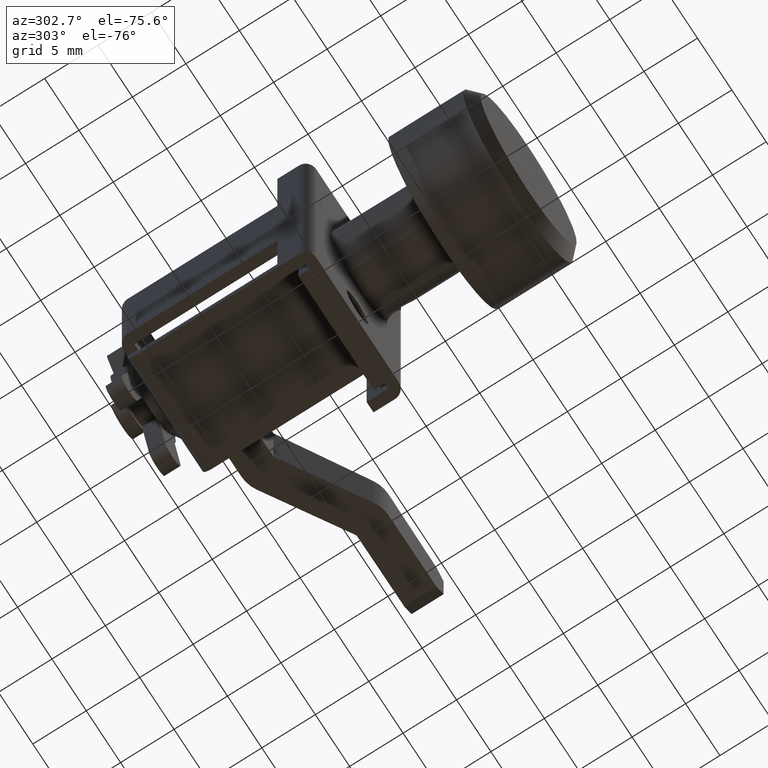
[diagram: clean part render]
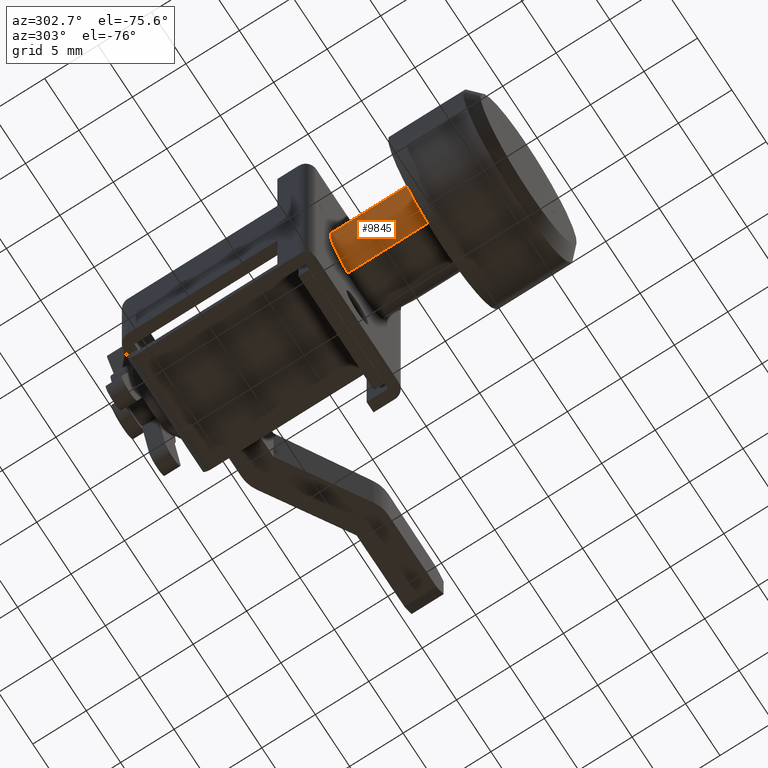
[diagram: same view with one face highlighted and labeled with its STEP entity id]
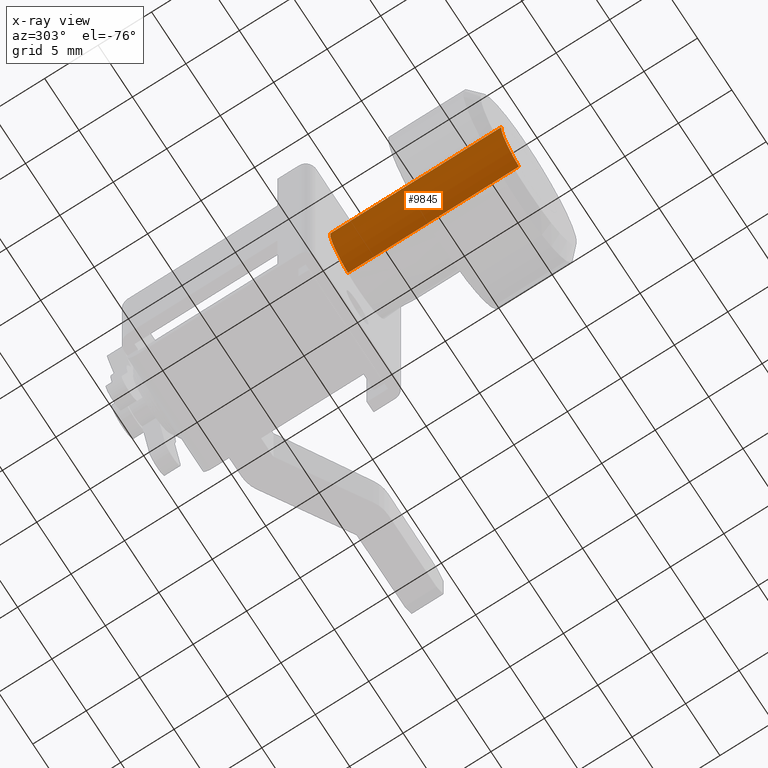
[diagram: x-ray of the same camera — body ghosted, the highlighted face saturated]
A machine part, auxiliary view. The second image highlights one B-rep face of the part: STEP entity #9845.
The next image is the same camera in x-ray: the body ghosted, the highlighted face saturated — about 0% of this face is hidden behind the body in this view.
In plain terms, the highlighted face is a freeform B-spline surface patch.
Its self-contained STEP definition (entity closure, byte-faithful):
#9632=CARTESIAN_POINT('',(8.235471E-014,1.406468401197538,-3.744575628348143));
#9633=VERTEX_POINT('',#9632);
#9666=CARTESIAN_POINT('',(1.000589E-013,3.992539193685162,0.244194158177115));
#9667=VERTEX_POINT('',#9666);
#9681=CARTESIAN_POINT('',(-16.0,3.992539193685162,0.244194158177115));
#9682=VERTEX_POINT('',#9681);
#9683=CARTESIAN_POINT('',(1.000589E-013,3.992539193685162,0.244194158177115));
#9684=CARTESIAN_POINT('',(-16.0,3.992539193685162,0.244194158177115));
#9685=QUASI_UNIFORM_CURVE('',1,(#9683,#9684),.UNSPECIFIED.,.F.,.U.);
#9686=EDGE_CURVE('',#9667,#9682,#9685,.T.);
#9720=CARTESIAN_POINT('',(-16.0,1.406468443282558,-3.744575612540988));
#9721=VERTEX_POINT('',#9720);
#9735=CARTESIAN_POINT('',(8.235471E-014,1.406468401197538,-3.744575628348143));
#9736=CARTESIAN_POINT('',(-16.0,1.406468443282558,-3.744575612540988));
#9737=QUASI_UNIFORM_CURVE('',1,(#9735,#9736),.UNSPECIFIED.,.F.,.U.);
#9738=EDGE_CURVE('',#9633,#9721,#9737,.T.);
#9793=CARTESIAN_POINT('',(0.400000000000102,3.991161051112932,0.266726590058543));
#9794=CARTESIAN_POINT('',(0.400000000000102,3.991849316047086,0.255473557855866));
#9795=CARTESIAN_POINT('',(0.400000000000102,4.172948891477367,-2.705478327212262));
#9796=CARTESIAN_POINT('',(0.400000000000102,1.394792610197098,-3.748961085961221));
#9797=CARTESIAN_POINT('',(0.400000000000102,1.383131415357001,-3.753341061214611));
#9798=CARTESIAN_POINT('',(-16.410000000000004,3.991161051112932,0.266726590058543));
#9799=CARTESIAN_POINT('',(-16.410000000000007,3.991849316047086,0.255473557855866));
#9800=CARTESIAN_POINT('',(-16.409999999999989,4.172948891477367,-2.705478327212262));
#9801=CARTESIAN_POINT('',(-16.410000000000000,1.394792610197098,-3.748961085961221));
#9802=CARTESIAN_POINT('',(-16.409999999999997,1.383131415357001,-3.753341061214611));
#9810=(BOUNDED_SURFACE()B_SPLINE_SURFACE(2,1,((#9793,#9798),(#9794,#9799),(#9795,#9800),(#9796,#9801),(#9797,#9802)),.UNSPECIFIED.,.F.,.F.,.U.)B_SPLINE_SURFACE_WITH_KNOTS((3,1,1,3),(2,2),(0.0,0.026328993625996,5.292123889172579,5.318456821275804),(0.0,16.810000000000102),.UNSPECIFIED.)GEOMETRIC_REPRESENTATION_ITEM()RATIONAL_B_SPLINE_SURFACE(((1.002343147454606,1.002343147454606),(1.001171573727303,1.001171573727303),(0.765685424949238,0.765685424949238),(0.906977219367452,0.906977219367452),(0.907680268755208,0.907680268755208)))REPRESENTATION_ITEM('')SURFACE());
#9811=CARTESIAN_POINT('',(1.000589E-013,3.992539193685162,0.244194158177115));
#9812=CARTESIAN_POINT('',(9.947598E-014,4.000000000000000,0.122211053232150));
#9813=CARTESIAN_POINT('',(9.947598E-014,4.0,0.0));
#9814=CARTESIAN_POINT('',(9.947598E-014,4.0,-2.770441146031612));
#9815=CARTESIAN_POINT('',(8.235471E-014,1.406468401197538,-3.744575628348142));
#9823=(BOUNDED_CURVE()B_SPLINE_CURVE(2,(#9811,#9812,#9813,#9814,#9815),.UNSPECIFIED.,.F.,.U.)B_SPLINE_CURVE_WITH_KNOTS((3,2,3),(0.239332962238711,0.250000000000000,0.440284318379212),.UNSPECIFIED.)CURVE()GEOMETRIC_REPRESENTATION_ITEM()RATIONAL_B_SPLINE_CURVE((0.976072041666220,0.987502787899565,1.0,0.777068054000756,0.893499735116851))REPRESENTATION_ITEM(''));
#9824=EDGE_CURVE('',#9667,#9633,#9823,.T.);
#9825=ORIENTED_EDGE('',*,*,#9824,.T.);
#9826=ORIENTED_EDGE('',*,*,#9738,.T.);
#9827=CARTESIAN_POINT('',(-15.999999999999998,3.992539193685162,0.244194158177115));
#9828=CARTESIAN_POINT('',(-16.000000000000004,4.000000000000000,0.122211053232150));
#9829=CARTESIAN_POINT('',(-16.0,4.0,0.0));
#9830=CARTESIAN_POINT('',(-16.000000000000007,4.0,-2.770441112770935));
#9831=CARTESIAN_POINT('',(-15.999999999999998,1.406468443282557,-3.744575612540988));
#9839=(BOUNDED_CURVE()B_SPLINE_CURVE(2,(#9827,#9828,#9829,#9830,#9831),.UNSPECIFIED.,.F.,.U.)B_SPLINE_CURVE_WITH_KNOTS((3,2,3),(0.239332962238711,0.250000000000000,0.440284316604024),.UNSPECIFIED.)CURVE()GEOMETRIC_REPRESENTATION_ITEM()RATIONAL_B_SPLINE_CURVE((0.976072041666220,0.987502787899565,1.0,0.777068056080517,0.893499732944438))REPRESENTATION_ITEM(''));
#9840=EDGE_CURVE('',#9682,#9721,#9839,.T.);
#9841=ORIENTED_EDGE('',*,*,#9840,.F.);
#9842=ORIENTED_EDGE('',*,*,#9686,.F.);
#9843=EDGE_LOOP('',(#9825,#9826,#9841,#9842));
#9844=FACE_OUTER_BOUND('',#9843,.T.);
#9845=ADVANCED_FACE('',(#9844),#9810,.T.);